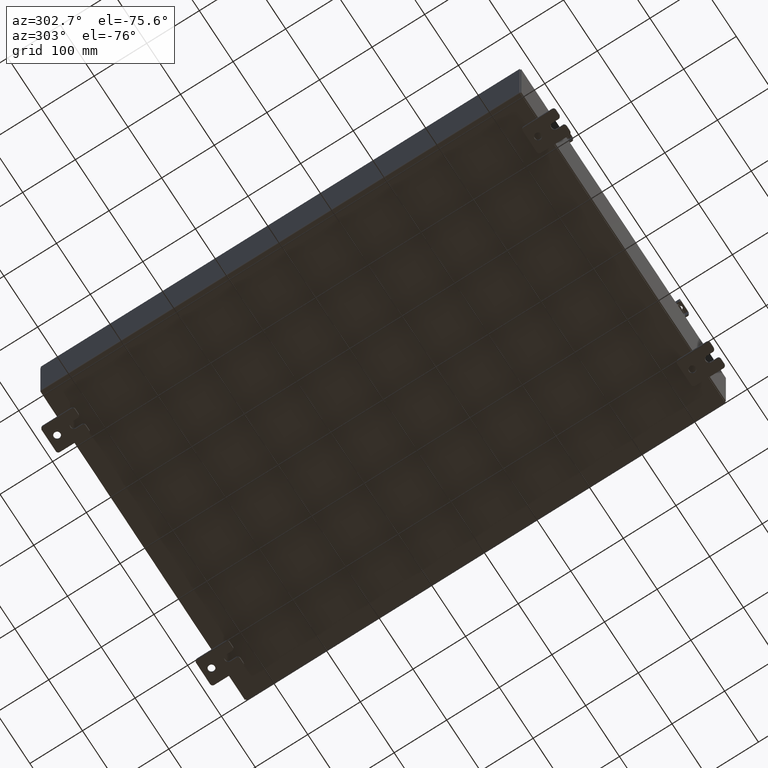
[diagram: clean part render]
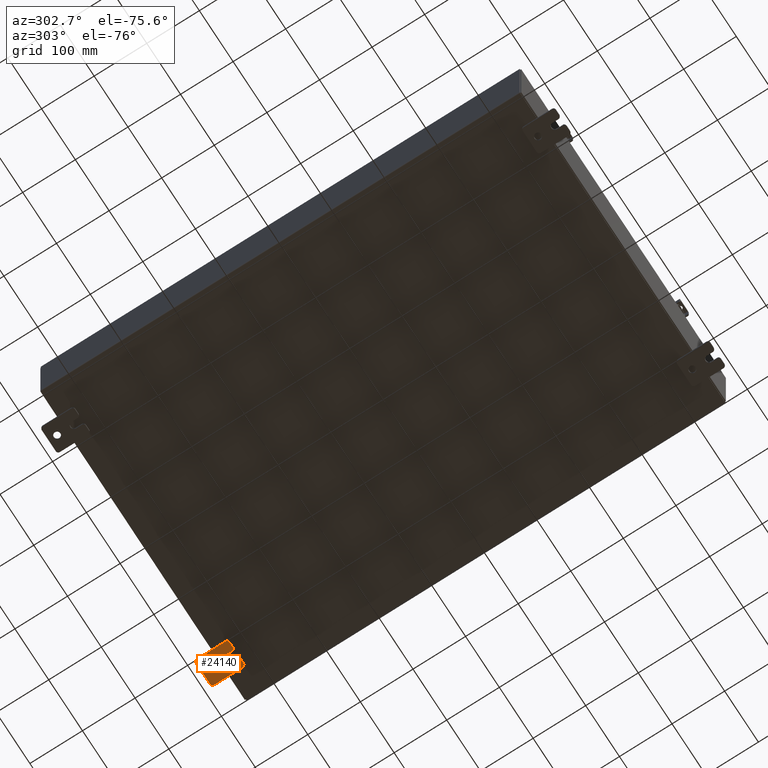
[diagram: same view with one face highlighted and labeled with its STEP entity id]
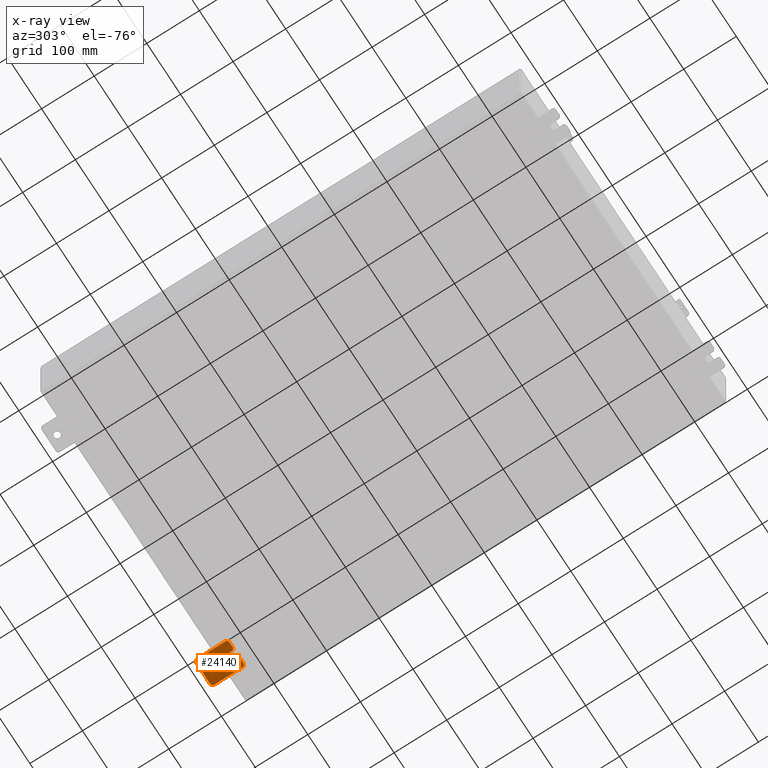
[diagram: x-ray of the same camera — body ghosted, the highlighted face saturated]
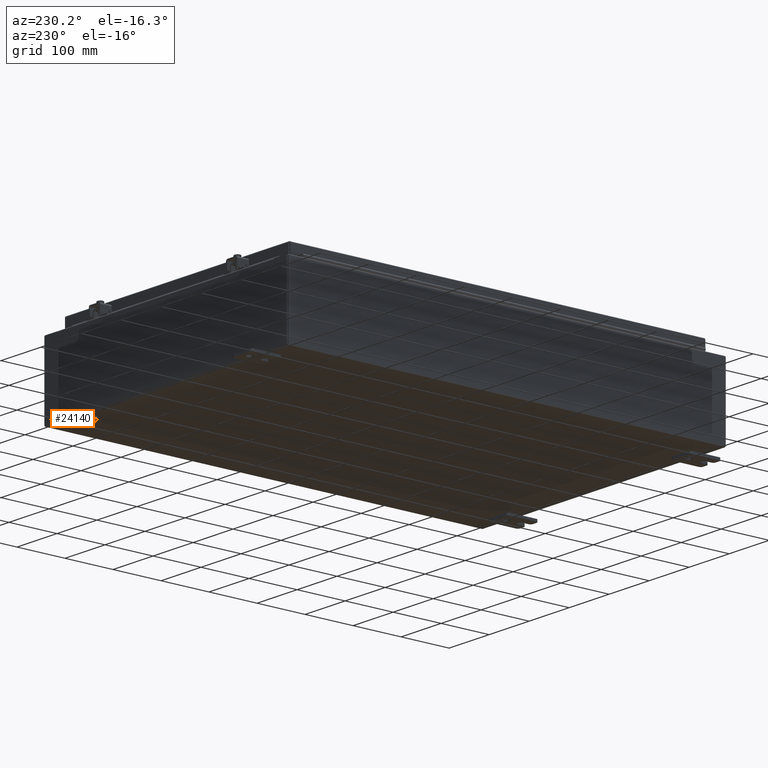
[diagram: same view with one face highlighted and labeled with its STEP entity id]
A machine part, auxiliary view. The second image highlights one B-rep face of the part: STEP entity #24140.
The next image is the same camera in x-ray: the body ghosted, the highlighted face saturated — about 0% of this face is hidden behind the body in this view.
A second angle (auxiliary view) of the same face is appended — the face is thin or edge-on in the first view.
In plain terms, the highlighted planar face has unit normal (0, 0, 1).
Its self-contained STEP definition (entity closure, byte-faithful):
#342 = PLANE ( 'NONE',  #42086 ) ;
#1070 = EDGE_CURVE ( 'NONE', #39750, #3345, #29812, .T. ) ;
#1205 = AXIS2_PLACEMENT_3D ( 'NONE', #23916, #5003, #4448 ) ;
#1247 = CARTESIAN_POINT ( 'NONE',  ( -0.1879999999999997800, 1.249999999999994200, -1.000000000000010400 ) ) ;
#1301 = CIRCLE ( 'NONE', #11022, 0.1900000000000011100 ) ;
#2442 = VECTOR ( 'NONE', #33155, 39.37007874015748100 ) ;
#3126 = VECTOR ( 'NONE', #33222, 39.37007874015748100 ) ;
#3345 = VERTEX_POINT ( 'NONE', #31438 ) ;
#3747 = DIRECTION ( 'NONE',  ( -1.000000000000000000, -0.0000000000000000000, 0.0000000000000000000 ) ) ;
#4044 = ORIENTED_EDGE ( 'NONE', *, *, #11491, .T. ) ;
#4448 = DIRECTION ( 'NONE',  ( 0.0000000000000000000, 0.0000000000000000000, -1.000000000000000000 ) ) ;
#4494 = CARTESIAN_POINT ( 'NONE',  ( -0.1880000000000004700, -1.060000000000002100, 0.2500000000000005000 ) ) ;
#4640 = ORIENTED_EDGE ( 'NONE', *, *, #30966, .F. ) ;
#4703 = AXIS2_PLACEMENT_3D ( 'NONE', #28415, #35517, #15740 ) ;
#5003 = DIRECTION ( 'NONE',  ( -1.000000000000000000, -0.0000000000000000000, 0.0000000000000000000 ) ) ;
#5021 = DIRECTION ( 'NONE',  ( 6.556435184794182400E-016, 1.000000000000000000, 0.0000000000000000000 ) ) ;
#5097 = DIRECTION ( 'NONE',  ( 0.0000000000000000000, 0.0000000000000000000, -1.000000000000000000 ) ) ;
#5478 = CARTESIAN_POINT ( 'NONE',  ( -0.1880000000000001900, -0.6249999999999992200, 0.2500000000000005000 ) ) ;
#5970 = VERTEX_POINT ( 'NONE', #23519 ) ;
#6269 = VECTOR ( 'NONE', #10456, 39.37007874015748100 ) ;
#6410 = CARTESIAN_POINT ( 'NONE',  ( -0.1879999999999997800, -1.250000000000004700, -0.4400000000000002200 ) ) ;
#6911 = CARTESIAN_POINT ( 'NONE',  ( -0.1879999999999997800, 1.249999999999997600, 0.9999999999999951200 ) ) ;
#7142 = ORIENTED_EDGE ( 'NONE', *, *, #12269, .T. ) ;
#7264 = EDGE_CURVE ( 'NONE', #36032, #10372, #8964, .T. ) ;
#7507 = CARTESIAN_POINT ( 'NONE',  ( -0.1879999999999997800, -1.250000000000002200, 0.9999999999999992200 ) ) ;
#7522 = CARTESIAN_POINT ( 'NONE',  ( -0.1879999999999997800, -1.250000000000002400, 0.8099999999999980500 ) ) ;
#7813 = ORIENTED_EDGE ( 'NONE', *, *, #10818, .T. ) ;
#8530 = DIRECTION ( 'NONE',  ( 0.0000000000000000000, 0.0000000000000000000, -1.000000000000000000 ) ) ;
#8964 = LINE ( 'NONE', #36586, #17626 ) ;
#10019 = DIRECTION ( 'NONE',  ( -1.000000000000000000, -0.0000000000000000000, 0.0000000000000000000 ) ) ;
#10083 = CARTESIAN_POINT ( 'NONE',  ( -0.1880000000000004700, -1.060000000000003400, -0.2499999999999994400 ) ) ;
#10372 = VERTEX_POINT ( 'NONE', #5478 ) ;
#10456 = DIRECTION ( 'NONE',  ( 0.0000000000000000000, -1.639108796198553600E-015, -1.000000000000000000 ) ) ;
#10789 = CARTESIAN_POINT ( 'NONE',  ( -0.1879999999999997800, -1.060000000000001200, 0.9999999999999988900 ) ) ;
#10818 = EDGE_CURVE ( 'NONE', #39750, #13810, #14985, .T. ) ;
#10906 = CARTESIAN_POINT ( 'NONE',  ( -0.1880000000000010000, 0.6249999999999992200, -7.703811342100550500E-020 ) ) ;
#11022 = AXIS2_PLACEMENT_3D ( 'NONE', #17624, #10019, #16433 ) ;
#11491 = EDGE_CURVE ( 'NONE', #22313, #39359, #11869, .T. ) ;
#11513 = LINE ( 'NONE', #1247, #36685 ) ;
#11869 = CIRCLE ( 'NONE', #25125, 0.1900000000000011100 ) ;
#11934 = ORIENTED_EDGE ( 'NONE', *, *, #13437, .T. ) ;
#12220 = CARTESIAN_POINT ( 'NONE',  ( -0.1880000000000001900, -0.6249999999999992200, 6.829619984160658000E-017 ) ) ;
#12269 = EDGE_CURVE ( 'NONE', #17503, #23255, #1301, .T. ) ;
#13437 = EDGE_CURVE ( 'NONE', #41829, #25724, #32827, .T. ) ;
#13810 = VERTEX_POINT ( 'NONE', #10789 ) ;
#13965 = CARTESIAN_POINT ( 'NONE',  ( -0.1880000000000010000, 0.6249999999999992200, -7.703811342100550500E-020 ) ) ;
#14216 = DIRECTION ( 'NONE',  ( 0.0000000000000000000, 0.0000000000000000000, -1.000000000000000000 ) ) ;
#14722 = EDGE_LOOP ( 'NONE', ( #36578, #7813, #42104, #15353, #15665, #4044, #27367, #40668, #4640, #7142, #21809, #24976, #20813, #24824 ) ) ;
#14985 = CIRCLE ( 'NONE', #42645, 0.1900000000000011100 ) ;
#15305 = VECTOR ( 'NONE', #36306, 39.37007874015748100 ) ;
#15310 = CARTESIAN_POINT ( 'NONE',  ( -0.1879999999999997800, 1.249999999999994700, -0.8100000000000092700 ) ) ;
#15353 = ORIENTED_EDGE ( 'NONE', *, *, #19864, .T. ) ;
#15497 = DIRECTION ( 'NONE',  ( -6.829619984160660000E-016, -1.000000000000000000, 0.0000000000000000000 ) ) ;
#15665 = ORIENTED_EDGE ( 'NONE', *, *, #28971, .F. ) ;
#15740 = DIRECTION ( 'NONE',  ( 0.0000000000000000000, 0.0000000000000000000, -1.000000000000000000 ) ) ;
#16187 = CARTESIAN_POINT ( 'NONE',  ( -0.1880000000000010000, 0.6249999999999992200, -0.2499999999999999200 ) ) ;
#16273 = VERTEX_POINT ( 'NONE', #30764 ) ;
#16433 = DIRECTION ( 'NONE',  ( 0.0000000000000000000, 0.0000000000000000000, -1.000000000000000000 ) ) ;
#16570 = EDGE_CURVE ( 'NONE', #5970, #39359, #23994, .T. ) ;
#16744 = FACE_OUTER_BOUND ( 'NONE', #14722, .T. ) ;
#17503 = VERTEX_POINT ( 'NONE', #6410 ) ;
#17624 = CARTESIAN_POINT ( 'NONE',  ( -0.1879999999999997800, -1.060000000000003400, -0.4400000000000005000 ) ) ;
#17626 = VECTOR ( 'NONE', #5021, 39.37007874015748100 ) ;
#18423 = VERTEX_POINT ( 'NONE', #40732 ) ;
#18818 = CIRCLE ( 'NONE', #4703, 0.1900000000000011100 ) ;
#19864 = EDGE_CURVE ( 'NONE', #41623, #32022, #32341, .T. ) ;
#20007 = LINE ( 'NONE', #6911, #2442 ) ;
#20507 = CIRCLE ( 'NONE', #26523, 0.2499999999999999200 ) ;
#20784 = EDGE_CURVE ( 'NONE', #18423, #23255, #26306, .T. ) ;
#20813 = ORIENTED_EDGE ( 'NONE', *, *, #7264, .F. ) ;
#21182 = CARTESIAN_POINT ( 'NONE',  ( -0.1879999999999997800, 1.059999999999993600, -0.8100000000000089400 ) ) ;
#21242 = DIRECTION ( 'NONE',  ( -1.000000000000000000, -0.0000000000000000000, 0.0000000000000000000 ) ) ;
#21809 = ORIENTED_EDGE ( 'NONE', *, *, #20784, .F. ) ;
#22015 = AXIS2_PLACEMENT_3D ( 'NONE', #13965, #31578, #5097 ) ;
#22313 = VERTEX_POINT ( 'NONE', #15310 ) ;
#23255 = VERTEX_POINT ( 'NONE', #10083 ) ;
#23384 = EDGE_CURVE ( 'NONE', #5970, #16273, #18818, .T. ) ;
#23519 = CARTESIAN_POINT ( 'NONE',  ( -0.1879999999999997800, -1.060000000000004500, -1.000000000000006400 ) ) ;
#23916 = CARTESIAN_POINT ( 'NONE',  ( -0.1879999999999997800, 1.059999999999996300, 0.8099999999999938400 ) ) ;
#23994 = LINE ( 'NONE', #27980, #3126 ) ;
#24140 = ADVANCED_FACE ( 'NONE', ( #37734, #16744 ), #342, .F. ) ;
#24150 = VECTOR ( 'NONE', #33874, 39.37007874015748100 ) ;
#24824 = ORIENTED_EDGE ( 'NONE', *, *, #30407, .T. ) ;
#24976 = ORIENTED_EDGE ( 'NONE', *, *, #40680, .F. ) ;
#25125 = AXIS2_PLACEMENT_3D ( 'NONE', #21182, #21242, #8530 ) ;
#25724 = VERTEX_POINT ( 'NONE', #16187 ) ;
#26088 = CARTESIAN_POINT ( 'NONE',  ( -0.1879999999999997800, 1.059999999999996500, 0.9999999999999953400 ) ) ;
#26291 = DIRECTION ( 'NONE',  ( -0.0000000000000000000, 0.0000000000000000000, -1.000000000000000000 ) ) ;
#26306 = LINE ( 'NONE', #27014, #15305 ) ;
#26523 = AXIS2_PLACEMENT_3D ( 'NONE', #10906, #33780, #14216 ) ;
#26929 = CARTESIAN_POINT ( 'NONE',  ( -0.1880000000000010000, 0.6249999999999992200, 0.2499999999999999200 ) ) ;
#27014 = CARTESIAN_POINT ( 'NONE',  ( -0.1880000000000001900, -0.6249999999999992200, -0.2499999999999993900 ) ) ;
#27367 = ORIENTED_EDGE ( 'NONE', *, *, #16570, .F. ) ;
#27980 = CARTESIAN_POINT ( 'NONE',  ( -0.1879999999999997800, -1.250000000000005600, -1.000000000000006200 ) ) ;
#28173 = CARTESIAN_POINT ( 'NONE',  ( -0.1879999999999997800, 0.0000000000000000000, 0.0000000000000000000 ) ) ;
#28415 = CARTESIAN_POINT ( 'NONE',  ( -0.1879999999999997800, -1.060000000000004100, -0.8100000000000050500 ) ) ;
#28421 = DIRECTION ( 'NONE',  ( 1.000000000000000000, 0.0000000000000000000, -0.0000000000000000000 ) ) ;
#28675 = CIRCLE ( 'NONE', #32250, 0.2499999999999999200 ) ;
#28971 = EDGE_CURVE ( 'NONE', #22313, #32022, #11513, .T. ) ;
#29812 = LINE ( 'NONE', #7507, #6269 ) ;
#30407 = EDGE_CURVE ( 'NONE', #36032, #3345, #42644, .T. ) ;
#30764 = CARTESIAN_POINT ( 'NONE',  ( -0.1879999999999997800, -1.250000000000005300, -0.8100000000000047200 ) ) ;
#30966 = EDGE_CURVE ( 'NONE', #17503, #16273, #40581, .T. ) ;
#31438 = CARTESIAN_POINT ( 'NONE',  ( -0.1879999999999997800, -1.250000000000003100, 0.4400000000000020000 ) ) ;
#31578 = DIRECTION ( 'NONE',  ( 1.000000000000000000, -0.0000000000000000000, -5.163192708025532000E-017 ) ) ;
#32022 = VERTEX_POINT ( 'NONE', #37609 ) ;
#32250 = AXIS2_PLACEMENT_3D ( 'NONE', #12220, #35119, #15497 ) ;
#32341 = CIRCLE ( 'NONE', #1205, 0.1900000000000011100 ) ;
#32419 = EDGE_CURVE ( 'NONE', #41623, #13810, #20007, .T. ) ;
#32827 = CIRCLE ( 'NONE', #22015, 0.2499999999999999200 ) ;
#33155 = DIRECTION ( 'NONE',  ( 0.0000000000000000000, -1.000000000000000000, 1.639108796198558100E-015 ) ) ;
#33222 = DIRECTION ( 'NONE',  ( 0.0000000000000000000, 1.000000000000000000, -1.639108796198558100E-015 ) ) ;
#33780 = DIRECTION ( 'NONE',  ( 1.000000000000000000, -0.0000000000000000000, -5.163192708025532000E-017 ) ) ;
#33825 = DIRECTION ( 'NONE',  ( 0.0000000000000000000, 0.0000000000000000000, -1.000000000000000000 ) ) ;
#33874 = DIRECTION ( 'NONE',  ( 0.0000000000000000000, -1.639108796198553600E-015, -1.000000000000000000 ) ) ;
#34579 = AXIS2_PLACEMENT_3D ( 'NONE', #36729, #3747, #33825 ) ;
#35119 = DIRECTION ( 'NONE',  ( -1.000000000000000000, 6.523827964459549700E-016, 5.163192708025532000E-017 ) ) ;
#35196 = CARTESIAN_POINT ( 'NONE',  ( -0.1879999999999997800, -1.060000000000001600, 0.8099999999999978300 ) ) ;
#35431 = DIRECTION ( 'NONE',  ( -1.000000000000000000, -0.0000000000000000000, 0.0000000000000000000 ) ) ;
#35440 = EDGE_LOOP ( 'NONE', ( #41914, #11934 ) ) ;
#35491 = DIRECTION ( 'NONE',  ( 0.0000000000000000000, 7.189073667537492800E-016, -1.000000000000000000 ) ) ;
#35517 = DIRECTION ( 'NONE',  ( -1.000000000000000000, -0.0000000000000000000, 0.0000000000000000000 ) ) ;
#36032 = VERTEX_POINT ( 'NONE', #4494 ) ;
#36306 = DIRECTION ( 'NONE',  ( -6.556435184794182400E-016, -1.000000000000000000, -1.639108796198545600E-016 ) ) ;
#36578 = ORIENTED_EDGE ( 'NONE', *, *, #1070, .F. ) ;
#36586 = CARTESIAN_POINT ( 'NONE',  ( -0.1880000000000005800, -1.250000000000003800, 0.2500000000000005000 ) ) ;
#36685 = VECTOR ( 'NONE', #37400, 39.37007874015748100 ) ;
#36729 = CARTESIAN_POINT ( 'NONE',  ( -0.1879999999999997800, -1.060000000000002100, 0.4400000000000016700 ) ) ;
#37400 = DIRECTION ( 'NONE',  ( 0.0000000000000000000, 1.639108796198553600E-015, 1.000000000000000000 ) ) ;
#37609 = CARTESIAN_POINT ( 'NONE',  ( -0.1879999999999997800, 1.249999999999997300, 0.8099999999999935000 ) ) ;
#37734 = FACE_BOUND ( 'NONE', #35440, .T. ) ;
#38506 = CARTESIAN_POINT ( 'NONE',  ( -0.1879999999999997800, 1.059999999999993400, -1.000000000000010000 ) ) ;
#38728 = CARTESIAN_POINT ( 'NONE',  ( -0.1879999999999997800, -1.250000000000002200, 0.9999999999999992200 ) ) ;
#39359 = VERTEX_POINT ( 'NONE', #38506 ) ;
#39750 = VERTEX_POINT ( 'NONE', #7522 ) ;
#40379 = EDGE_CURVE ( 'NONE', #25724, #41829, #20507, .T. ) ;
#40581 = LINE ( 'NONE', #38728, #24150 ) ;
#40668 = ORIENTED_EDGE ( 'NONE', *, *, #23384, .T. ) ;
#40680 = EDGE_CURVE ( 'NONE', #10372, #18423, #28675, .T. ) ;
#40732 = CARTESIAN_POINT ( 'NONE',  ( -0.1880000000000001900, -0.6249999999999992200, -0.2499999999999998600 ) ) ;
#41623 = VERTEX_POINT ( 'NONE', #26088 ) ;
#41829 = VERTEX_POINT ( 'NONE', #26929 ) ;
#41914 = ORIENTED_EDGE ( 'NONE', *, *, #40379, .T. ) ;
#42086 = AXIS2_PLACEMENT_3D ( 'NONE', #28173, #28421, #26291 ) ;
#42104 = ORIENTED_EDGE ( 'NONE', *, *, #32419, .F. ) ;
#42644 = CIRCLE ( 'NONE', #34579, 0.1900000000000011400 ) ;
#42645 = AXIS2_PLACEMENT_3D ( 'NONE', #35196, #35431, #35491 ) ;